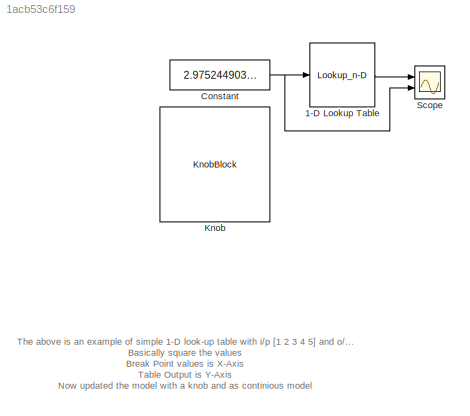
MODEL slx_1acb53c6f159
KIND model
CONFIG AbsTol = auto
CONFIG EnableMultiTasking = off
CONFIG FixedStep = 1
CONFIG MaxStep = auto
CONFIG MinStep = auto
CONFIG RelTol = 1e-3
CONFIG SampleTimeConstraint = Unconstrained
CONFIG Solver = VariableStepAuto
CONFIG SolverName = VariableStepAuto
CONFIG StartTime = 0.0
CONFIG StopTime = inf
BLOCK [Lookup_n-D] 1-D Lookup Table
  BreakpointsForDimension1 = [1 2 3 4 5]
  InternalRulePriority = Speed
  NumberOfTableDimensions = 1
  Ports = [1, 1]
  RndMeth = Simplest
  Table = [1 4 9 16 25]
BLOCK [Constant] Constant
  Value = 2.975244903564453
BLOCK [KnobBlock] Knob
  ScaleMax = 5
BLOCK [Scope] Scope
  Floating = off
  NumInputPorts = 2
  Ports = [2]
  ScopeSpecificationString = Simulink.scopes.TimeScopeBlockCfg('CurrentConfiguration', extmgr.ConfigurationSet(extmgr.Configuration('Core','General UI',true),extmgr.Configuration('Core','Source UI',true),extmgr.Configuration('Sources','WiredSimulink',true),extmgr.Configuration('Visuals','Time Domain',true,'SerializedDisplays',{struct('MinYLimReal','2.23762','MaxYLimReal','9.61385','YLabelReal','','MinYLimMag','2.23762','MaxYL...<+1472ch>
ANNOTATION (root): The above is an example of simple 1-D look-up table with i/p [1 2 3 4 5] and o/p [1 4 9 16 25] Basically square the values Break Point values is X-Axis Table Output is Y-Axis Now updated the model with a knob and as continious model
LINE 1-D Lookup Table:1 -> Scope:1
NET Constant:1 -> 1-D Lookup Table:1, Scope:2
note: NET lines group one-source signal fan-out (src -> all destinations, sorted); 1:1 wires keep LINE
